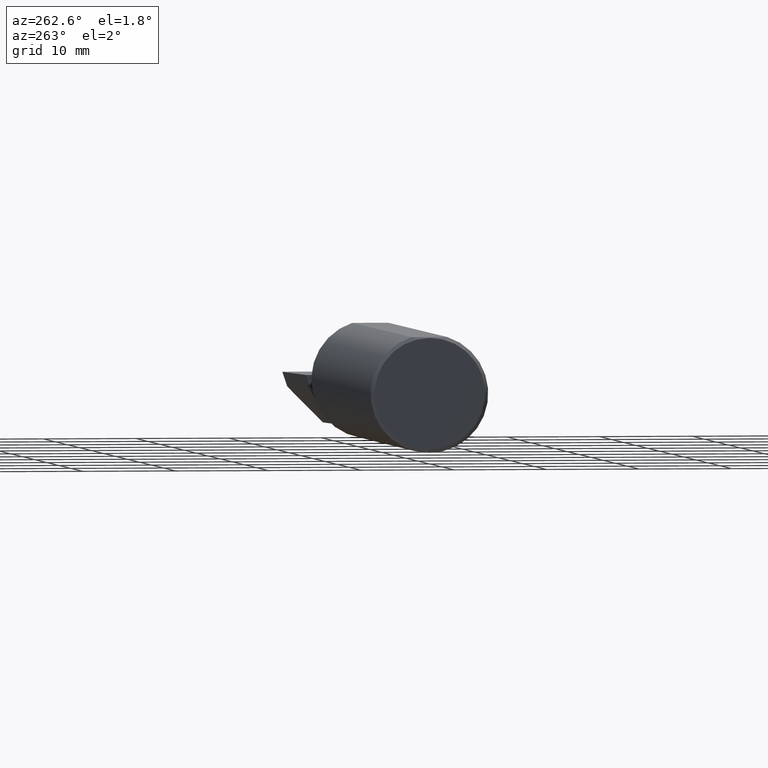
[diagram: clean part render]
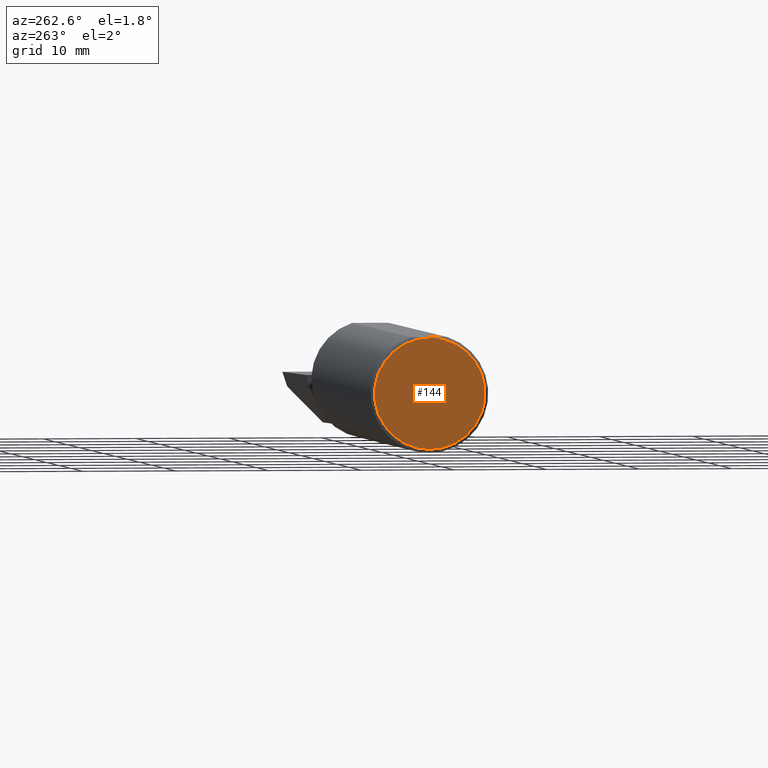
[diagram: same view with one face highlighted and labeled with its STEP entity id]
A machine part, auxiliary view. The second image highlights one B-rep face of the part: STEP entity #144.
In plain terms, the highlighted planar face has unit normal (1, 0, 0).
Its self-contained STEP definition (entity closure, byte-faithful):
#112 = CIRCLE ( 'NONE', #738, 0.2348499999999996424 ) ;
#144 = ADVANCED_FACE ( 'NONE', ( #783 ), #533, .F. ) ;
#148 = CARTESIAN_POINT ( 'NONE',  ( 0.000000000000000000, 0.000000000000000000, 0.000000000000000000 ) ) ;
#194 = DIRECTION ( 'NONE',  ( 0.000000000000000000, 0.000000000000000000, -1.000000000000000000 ) ) ;
#196 = DIRECTION ( 'NONE',  ( 0.000000000000000000, 0.000000000000000000, 1.000000000000000000 ) ) ;
#221 = AXIS2_PLACEMENT_3D ( 'NONE', #148, #796, #196 ) ;
#248 = DIRECTION ( 'NONE',  ( 0.000000000000000000, 0.000000000000000000, 1.000000000000000000 ) ) ;
#256 = CARTESIAN_POINT ( 'NONE',  ( 0.000000000000000000, 0.000000000000000000, 0.000000000000000000 ) ) ;
#325 = DIRECTION ( 'NONE',  ( -1.000000000000000000, -0.000000000000000000, -0.000000000000000000 ) ) ;
#467 = EDGE_CURVE ( 'NONE', #704, #776, #112, .T. ) ;
#517 = CARTESIAN_POINT ( 'NONE',  ( 0.000000000000000000, 0.000000000000000000, 0.000000000000000000 ) ) ;
#519 = EDGE_LOOP ( 'NONE', ( #551, #541 ) ) ;
#533 = PLANE ( 'NONE',  #679 ) ;
#541 = ORIENTED_EDGE ( 'NONE', *, *, #601, .T. ) ;
#551 = ORIENTED_EDGE ( 'NONE', *, *, #467, .T. ) ;
#601 = EDGE_CURVE ( 'NONE', #776, #704, #610, .T. ) ;
#610 = CIRCLE ( 'NONE', #221, 0.2348499999999996424 ) ;
#616 = CARTESIAN_POINT ( 'NONE',  ( 0.000000000000000000, 0.000000000000000000, -0.2348499999999996424 ) ) ;
#679 = AXIS2_PLACEMENT_3D ( 'NONE', #256, #716, #194 ) ;
#694 = CARTESIAN_POINT ( 'NONE',  ( 0.000000000000000000, 2.967931517733664261E-17, 0.2348499999999996424 ) ) ;
#704 = VERTEX_POINT ( 'NONE', #616 ) ;
#716 = DIRECTION ( 'NONE',  ( 1.000000000000000000, 0.000000000000000000, 0.000000000000000000 ) ) ;
#738 = AXIS2_PLACEMENT_3D ( 'NONE', #517, #325, #248 ) ;
#776 = VERTEX_POINT ( 'NONE', #694 ) ;
#783 = FACE_OUTER_BOUND ( 'NONE', #519, .T. ) ;
#796 = DIRECTION ( 'NONE',  ( -1.000000000000000000, -0.000000000000000000, -0.000000000000000000 ) ) ;